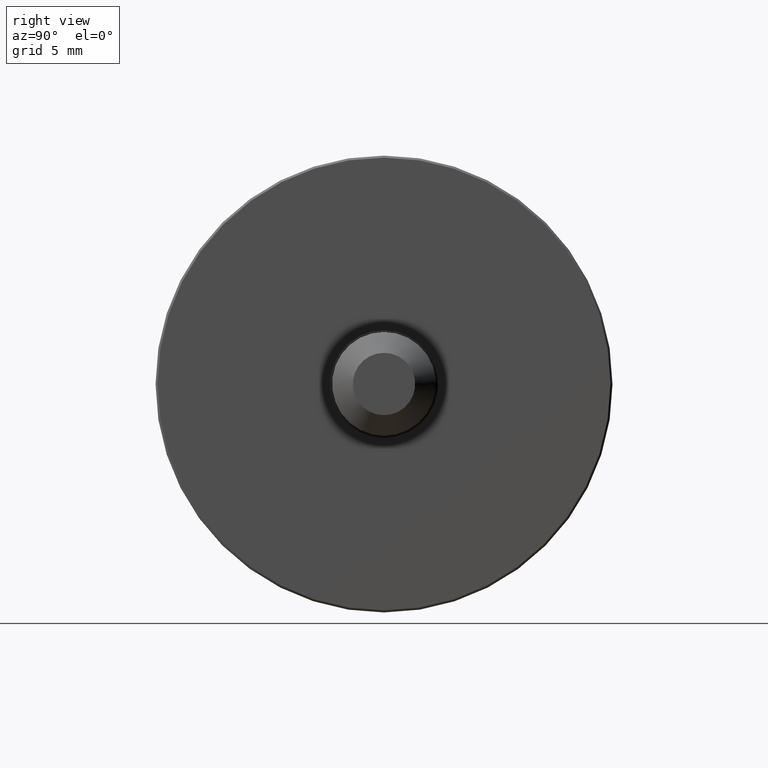
[diagram: clean part render]
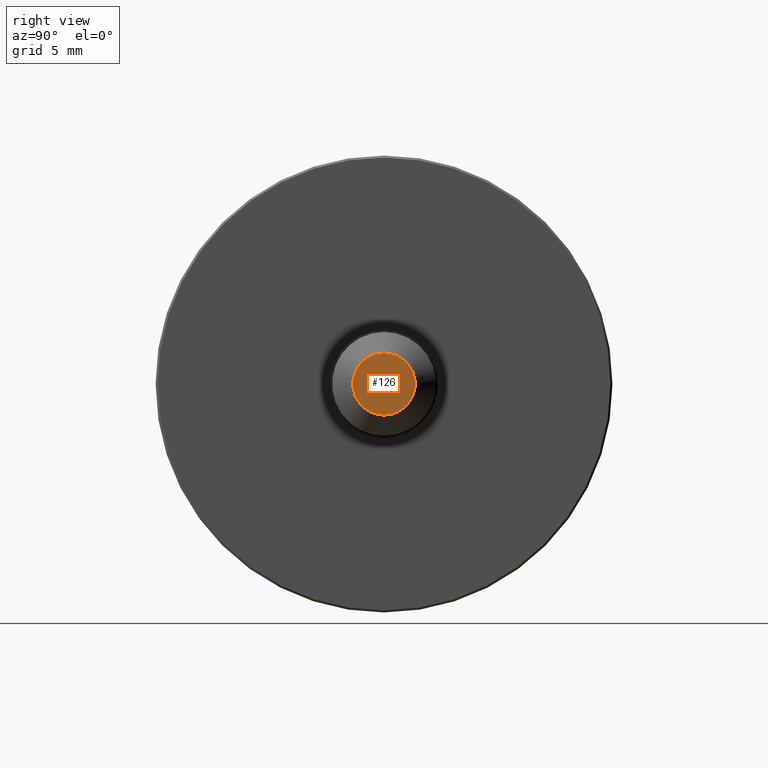
[diagram: same view with one face highlighted and labeled with its STEP entity id]
A machine part, right view. The second image highlights one B-rep face of the part: STEP entity #126.
In plain terms, the highlighted planar face has unit normal (1, 0, 0).
Its self-contained STEP definition (entity closure, byte-faithful):
#21=PLANE('',#149);
#41=FACE_OUTER_BOUND('',#61,.T.);
#61=EDGE_LOOP('',(#111));
#71=CIRCLE('',#148,1.5);
#81=VERTEX_POINT('',#223);
#91=EDGE_CURVE('',#81,#81,#71,.T.);
#111=ORIENTED_EDGE('',*,*,#91,.F.);
#126=ADVANCED_FACE('',(#41),#21,.T.);
#148=AXIS2_PLACEMENT_3D('',#224,#190,#191);
#149=AXIS2_PLACEMENT_3D('',#225,#192,#193);
#190=DIRECTION('center_axis',(-1.,0.,0.));
#191=DIRECTION('ref_axis',(0.,0.,1.));
#192=DIRECTION('center_axis',(1.,0.,0.));
#193=DIRECTION('ref_axis',(0.,0.,-1.));
#223=CARTESIAN_POINT('',(16.5,-1.83697019872103E-16,-1.5));
#224=CARTESIAN_POINT('Origin',(16.5,0.,0.));
#225=CARTESIAN_POINT('Origin',(16.5,4.62592926927149E-17,1.18032060367666E-16));